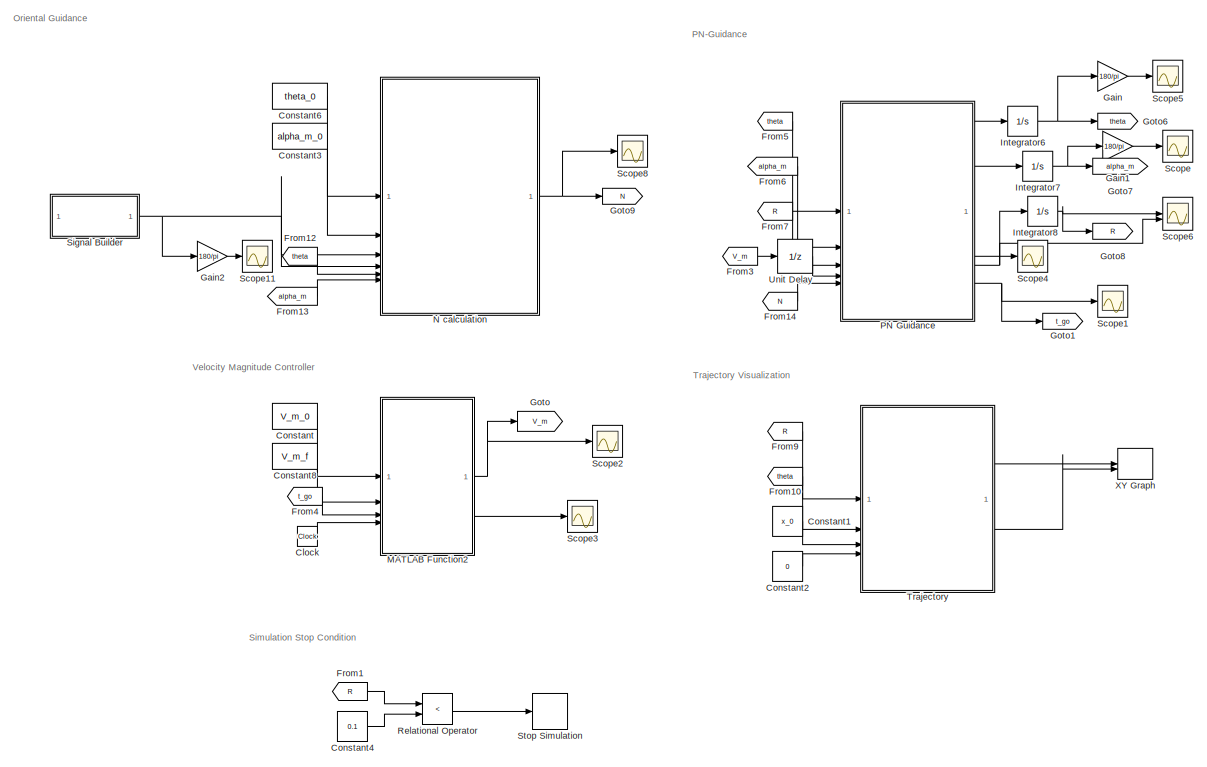
[diagram: root canvas - part 1/2, center side, full height]
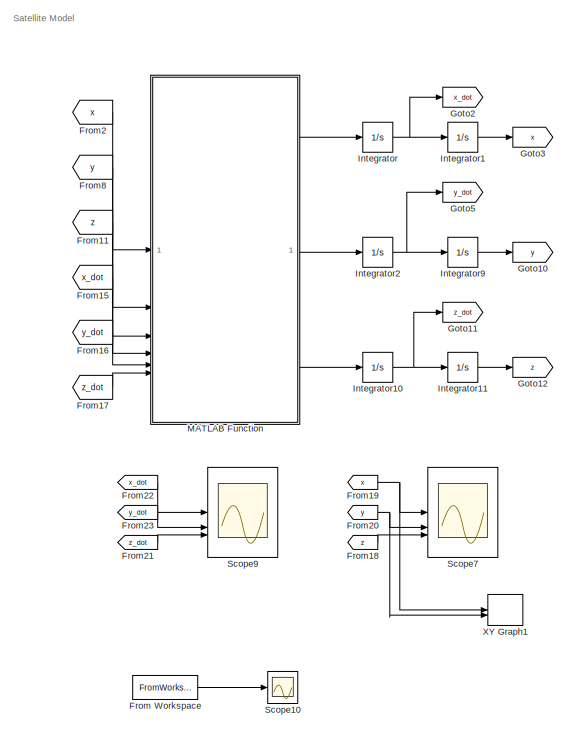
[diagram: root canvas - part 2/2, right side, full height]
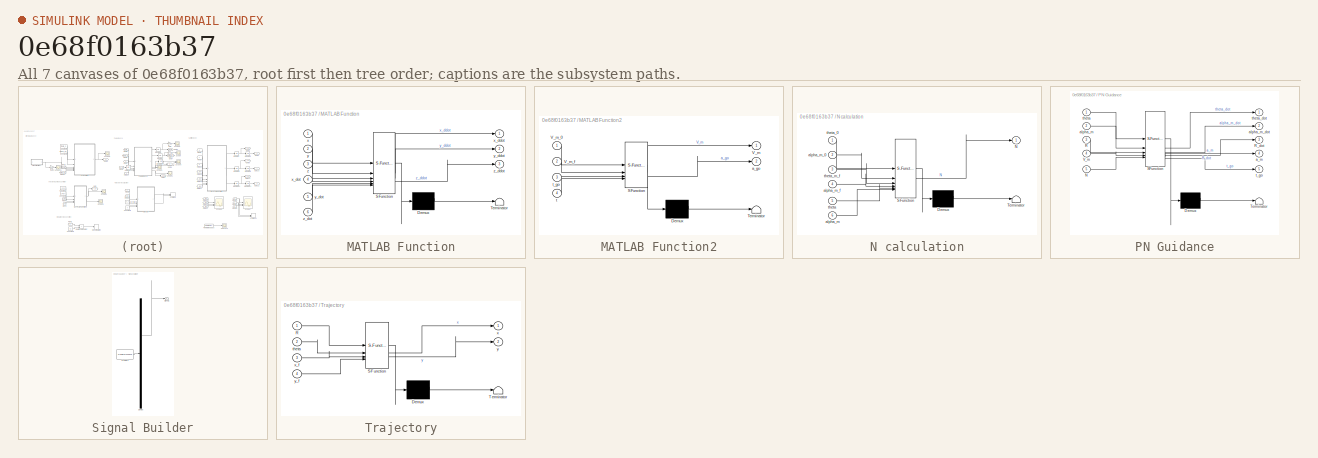
[diagram: thumbnail index - all 7 canvases of the model, root first then tree order]
MODEL slx_0e68f0163b37
KIND model
CONFIG AbsTol = auto
CONFIG EnableMultiTasking = off
CONFIG FixedStep = auto
CONFIG MaxStep = 0.01
CONFIG MinStep = auto
CONFIG RelTol = 1e-3
CONFIG SampleTimeConstraint = Unconstrained
CONFIG SolverName = ode45
CONFIG StartTime = 0.0
CONFIG StopTime = 50
BLOCK [Clock] Clock
  Decimation = 5
BLOCK [Constant] Constant
  Value = V_m_0
BLOCK [Constant] Constant1
  Value = x_0
BLOCK [Constant] Constant2
  Value = 0
BLOCK [Constant] Constant3
  Value = alpha_m_0
BLOCK [Constant] Constant4
  Value = 0.1
BLOCK [Constant] Constant6
  Value = theta_0
BLOCK [Constant] Constant8
  Value = V_m_f
BLOCK [FromWorkspace] From Workspace
  Commented = on
  SampleTime = -1
  VariableName = [tout_ren, V_m]
BLOCK [From] From1
  GotoTag = R
BLOCK [From] From10
  GotoTag = theta
BLOCK [From] From11
  Commented = on
  GotoTag = z
BLOCK [From] From12
  GotoTag = theta
BLOCK [From] From13
  GotoTag = alpha_m
BLOCK [From] From14
  GotoTag = N
BLOCK [From] From15
  Commented = on
  GotoTag = x_dot
BLOCK [From] From16
  Commented = on
  GotoTag = y_dot
BLOCK [From] From17
  Commented = on
  GotoTag = z_dot
BLOCK [From] From18
  Commented = on
  GotoTag = z
BLOCK [From] From19
  Commented = on
  GotoTag = x
BLOCK [From] From2
  Commented = on
  GotoTag = x
BLOCK [From] From20
  Commented = on
  GotoTag = y
BLOCK [From] From21
  Commented = on
  GotoTag = z_dot
BLOCK [From] From22
  Commented = on
  GotoTag = x_dot
BLOCK [From] From23
  Commented = on
  GotoTag = y_dot
BLOCK [From] From3
  GotoTag = V_m
BLOCK [From] From4
  GotoTag = t_go
BLOCK [From] From5
  GotoTag = theta
BLOCK [From] From6
  GotoTag = alpha_m
BLOCK [From] From7
  GotoTag = R
BLOCK [From] From8
  Commented = on
  GotoTag = y
BLOCK [From] From9
  GotoTag = R
BLOCK [Gain] Gain
  Gain = 180/pi
BLOCK [Gain] Gain1
  Gain = 180/pi
BLOCK [Gain] Gain2
  Gain = 180/pi
BLOCK [Goto] Goto
  GotoTag = V_m
BLOCK [Goto] Goto1
  GotoTag = t_go
BLOCK [Goto] Goto10
  Commented = on
  GotoTag = y
BLOCK [Goto] Goto11
  Commented = on
  GotoTag = z_dot
BLOCK [Goto] Goto12
  Commented = on
  GotoTag = z
BLOCK [Goto] Goto2
  Commented = on
  GotoTag = x_dot
BLOCK [Goto] Goto3
  Commented = on
  GotoTag = x
BLOCK [Goto] Goto5
  Commented = on
  GotoTag = y_dot
BLOCK [Goto] Goto6
  GotoTag = theta
BLOCK [Goto] Goto7
  GotoTag = alpha_m
BLOCK [Goto] Goto8
  GotoTag = R
BLOCK [Goto] Goto9
  GotoTag = N
BLOCK [Integrator] Integrator
  Commented = on
  InitialCondition = 0.0318
BLOCK [Integrator] Integrator1
  Commented = on
  InitialCondition = 40
BLOCK [Integrator] Integrator10
  Commented = on
  InitialCondition = 0.0212
BLOCK [Integrator] Integrator11
  Commented = on
  InitialCondition = -15
BLOCK [Integrator] Integrator2
  Commented = on
  InitialCondition = 0.0367
BLOCK [Integrator] Integrator6
  InitialCondition = theta_0
BLOCK [Integrator] Integrator7
  InitialCondition = alpha_m_0
BLOCK [Integrator] Integrator8
  InitialCondition = R_0
BLOCK [Integrator] Integrator9
  Commented = on
  InitialCondition = -26
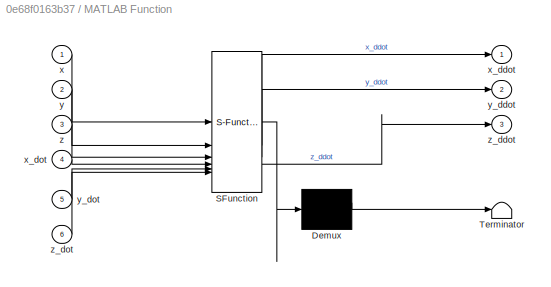
BLOCK [SubSystem] MATLAB Function
  Commented = on
  ErrorFcn = Stateflow.Translate.translate
  LibrarySourceBlock = simulink/User-Defined\nFunctions/MATLAB Function
  PermitHierarchicalResolution = ExplicitOnly
  SFBlockType = MATLAB Function
  TreatAsAtomicUnit = on
BLOCK [Demux] MATLAB Function/ Demux 
  Outputs = 1
BLOCK [S-Function] MATLAB Function/ SFunction 
  EnableBusSupport = on
  FunctionName = sf_sfun
  PortCounts = [6 4]
  SFcnIsStateOwnerBlock = off
  SFunctionDeploymentMode = off
  Tag = Stateflow S-Function 2
BLOCK [Terminator] MATLAB Function/ Terminator 
BLOCK [Inport] MATLAB Function/x
BLOCK [Outport] MATLAB Function/x_ddot
BLOCK [Inport] MATLAB Function/x_dot
  Port = 4
BLOCK [Inport] MATLAB Function/y
  Port = 2
BLOCK [Outport] MATLAB Function/y_ddot
  Port = 2
BLOCK [Inport] MATLAB Function/y_dot
  Port = 5
BLOCK [Inport] MATLAB Function/z
  Port = 3
BLOCK [Outport] MATLAB Function/z_ddot
  Port = 3
BLOCK [Inport] MATLAB Function/z_dot
  Port = 6
BLOCK [SubSystem] MATLAB Function2
  ErrorFcn = Stateflow.Translate.translate
  LibrarySourceBlock = simulink/User-Defined\nFunctions/MATLAB Function
  PermitHierarchicalResolution = ExplicitOnly
  SFBlockType = MATLAB Function
  TreatAsAtomicUnit = on
BLOCK [Demux] MATLAB Function2/ Demux 
  Outputs = 1
BLOCK [S-Function] MATLAB Function2/ SFunction 
  EnableBusSupport = on
  FunctionName = sf_sfun
  PortCounts = [4 3]
  SFcnIsStateOwnerBlock = off
  SFunctionDeploymentMode = off
  Tag = Stateflow S-Function 6
BLOCK [Terminator] MATLAB Function2/ Terminator 
BLOCK [Outport] MATLAB Function2/V_m
BLOCK [Inport] MATLAB Function2/V_m_0
BLOCK [Inport] MATLAB Function2/V_m_f
  Port = 2
BLOCK [Outport] MATLAB Function2/a_go
  Port = 2
BLOCK [Inport] MATLAB Function2/t
  Port = 4
BLOCK [Inport] MATLAB Function2/t_go
  Port = 3
BLOCK [SubSystem] N calculation
  ErrorFcn = Stateflow.Translate.translate
  LibrarySourceBlock = simulink/User-Defined\nFunctions/MATLAB Function
  PermitHierarchicalResolution = ExplicitOnly
  SFBlockType = MATLAB Function
  TreatAsAtomicUnit = on
BLOCK [Demux] N calculation/ Demux 
  Outputs = 1
BLOCK [S-Function] N calculation/ SFunction 
  EnableBusSupport = on
  FunctionName = sf_sfun
  PortCounts = [6 2]
  SFcnIsStateOwnerBlock = off
  SFunctionDeploymentMode = off
  Tag = Stateflow S-Function 5
BLOCK [Terminator] N calculation/ Terminator 
BLOCK [Outport] N calculation/N
BLOCK [Inport] N calculation/alpha_m
  Port = 6
BLOCK [Inport] N calculation/alpha_m_0
  Port = 2
BLOCK [Inport] N calculation/alpha_m_f
  Port = 4
BLOCK [Inport] N calculation/theta
  Port = 5
BLOCK [Inport] N calculation/theta_0
BLOCK [Inport] N calculation/theta_m_f
  Port = 3
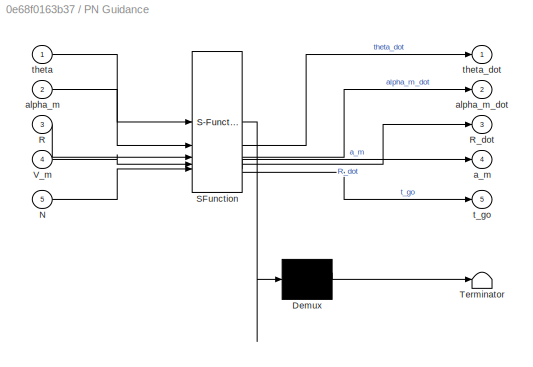
BLOCK [SubSystem] PN Guidance
  ErrorFcn = Stateflow.Translate.translate
  LibrarySourceBlock = simulink/User-Defined\nFunctions/MATLAB Function
  PermitHierarchicalResolution = ExplicitOnly
  SFBlockType = MATLAB Function
  TreatAsAtomicUnit = on
BLOCK [Demux] PN Guidance/ Demux 
  Outputs = 1
BLOCK [S-Function] PN Guidance/ SFunction 
  EnableBusSupport = on
  FunctionName = sf_sfun
  PortCounts = [5 6]
  SFcnIsStateOwnerBlock = off
  SFunctionDeploymentMode = off
  Tag = Stateflow S-Function 3
BLOCK [Terminator] PN Guidance/ Terminator 
BLOCK [Inport] PN Guidance/N
  Port = 5
BLOCK [Inport] PN Guidance/R
  Port = 3
BLOCK [Outport] PN Guidance/R_dot
  Port = 3
BLOCK [Inport] PN Guidance/V_m
  Port = 4
BLOCK [Outport] PN Guidance/a_m
  Port = 4
BLOCK [Inport] PN Guidance/alpha_m
  Port = 2
BLOCK [Outport] PN Guidance/alpha_m_dot
  Port = 2
BLOCK [Outport] PN Guidance/t_go
  Port = 5
BLOCK [Inport] PN Guidance/theta
BLOCK [Outport] PN Guidance/theta_dot
BLOCK [RelationalOperator] Relational Operator
  InputSameDT = off
  Operator = <
  OutDataTypeStr = boolean
  RndMeth = Simplest
BLOCK [Scope] Scope
  Floating = off
  NumInputPorts = 1
  ScopeSpecificationString = Simulink.scopes.TimeScopeBlockCfg('CurrentConfiguration', extmgr.ConfigurationSet(extmgr.Configuration('Core','General UI',true),extmgr.Configuration('Core','Source UI',true),extmgr.Configuration('Sources','WiredSimulink',true,'DataLoggingSaveFormat','Array','DataLoggingLimitDataPoints',true,'DataLoggingDecimation','1'),extmgr.Configuration('Visuals','Time Domain',true,'SerializedDisplays',{struct...<+1945ch>
BLOCK [Scope] Scope1
  Floating = off
  NumInputPorts = 1
  ScopeSpecificationString = Simulink.scopes.TimeScopeBlockCfg('CurrentConfiguration', extmgr.ConfigurationSet(extmgr.Configuration('Core','General UI',true),extmgr.Configuration('Core','Source UI',true),extmgr.Configuration('Sources','WiredSimulink',true,'DataLoggingVariableName','ScopeData1','DataLoggingSaveFormat','Array','DataLoggingLimitDataPoints',true,'DataLoggingDecimation','1'),extmgr.Configuration('Visuals','Time Do...<+2031ch>
BLOCK [Scope] Scope10
  Commented = on
  Floating = off
  NumInputPorts = 1
  ScopeSpecificationString = Simulink.scopes.TimeScopeBlockCfg('CurrentConfiguration', extmgr.ConfigurationSet(extmgr.Configuration('Core','General UI',true),extmgr.Configuration('Core','Source UI',true),extmgr.Configuration('Sources','WiredSimulink',true,'DataLoggingVariableName','ScopeData3','DataLoggingSaveFormat','Array','DataLoggingLimitDataPoints',true,'DataLoggingDecimation','1'),extmgr.Configuration('Visuals','Time Do...<+1993ch>
BLOCK [Scope] Scope11
  Floating = off
  NumInputPorts = 1
  ScopeSpecificationString = Simulink.scopes.TimeScopeBlockCfg('CurrentConfiguration', extmgr.ConfigurationSet(extmgr.Configuration('Core','General UI',true),extmgr.Configuration('Core','Source UI',true),extmgr.Configuration('Sources','WiredSimulink',true,'DataLoggingVariableName','ScopeData4','DataLoggingSaveFormat','Array','DataLoggingLimitDataPoints',true,'DataLoggingDecimation','1'),extmgr.Configuration('Visuals','Time Do...<+2049ch>
BLOCK [Scope] Scope2
  Floating = off
  NumInputPorts = 1
  ScopeSpecificationString = Simulink.scopes.TimeScopeBlockCfg('CurrentConfiguration', extmgr.ConfigurationSet(extmgr.Configuration('Core','General UI',true),extmgr.Configuration('Core','Source UI',true),extmgr.Configuration('Sources','WiredSimulink',true,'DataLoggingVariableName','ScopeData2','DataLoggingSaveFormat','Array','DataLoggingLimitDataPoints',true,'DataLoggingDecimation','1'),extmgr.Configuration('Visuals','Time Do...<+2032ch>
BLOCK [Scope] Scope3
  Floating = off
  NumInputPorts = 1
  ScopeSpecificationString = Simulink.scopes.TimeScopeBlockCfg('CurrentConfiguration', extmgr.ConfigurationSet(extmgr.Configuration('Core','General UI',true),extmgr.Configuration('Core','Source UI',true),extmgr.Configuration('Sources','WiredSimulink',true,'DataLoggingVariableName','ScopeData6','DataLoggingSaveFormat','Array','DataLoggingLimitDataPoints',true,'DataLoggingDecimation','1'),extmgr.Configuration('Visuals','Time Do...<+1973ch>
BLOCK [Scope] Scope4
  Floating = off
  NumInputPorts = 1
  ScopeSpecificationString = Simulink.scopes.TimeScopeBlockCfg('CurrentConfiguration', extmgr.ConfigurationSet(extmgr.Configuration('Core','General UI',true),extmgr.Configuration('Core','Source UI',true),extmgr.Configuration('Sources','WiredSimulink',true,'DataLoggingVariableName','ScopeData3','DataLoggingSaveFormat','Array','DataLoggingLimitDataPoints',true,'DataLoggingDecimation','1'),extmgr.Configuration('Visuals','Time Do...<+2024ch>
BLOCK [Scope] Scope5
  Floating = off
  NumInputPorts = 1
  ScopeSpecificationString = Simulink.scopes.TimeScopeBlockCfg('CurrentConfiguration', extmgr.ConfigurationSet(extmgr.Configuration('Core','General UI',true),extmgr.Configuration('Core','Source UI',true),extmgr.Configuration('Sources','WiredSimulink',true,'DataLoggingVariableName','ScopeData4','DataLoggingSaveFormat','Array','DataLoggingLimitDataPoints',true,'DataLoggingDecimation','1'),extmgr.Configuration('Visuals','Time Do...<+2030ch>
BLOCK [Scope] Scope6
  Floating = off
  NumInputPorts = 2
  ScopeSpecificationString = Simulink.scopes.TimeScopeBlockCfg('CurrentConfiguration', extmgr.ConfigurationSet(extmgr.Configuration('Core','General UI',true),extmgr.Configuration('Core','Source UI',true),extmgr.Configuration('Sources','WiredSimulink',true,'DataLoggingVariableName','ScopeData5','DataLoggingSaveFormat','Array','DataLoggingLimitDataPoints',true,'DataLoggingDecimation','1'),extmgr.Configuration('Visuals','Time Do...<+2717ch>
BLOCK [Scope] Scope7
  Commented = on
  Floating = off
  NumInputPorts = 3
  ScopeSpecificationString = Simulink.scopes.TimeScopeBlockCfg('CurrentConfiguration', extmgr.ConfigurationSet(extmgr.Configuration('Core','General UI',true),extmgr.Configuration('Core','Source UI',true),extmgr.Configuration('Sources','WiredSimulink',true,'DataLoggingVariableName','ScopeData1','DataLoggingSaveFormat','Array','DataLoggingLimitDataPoints',true,'DataLoggingDecimation','1'),extmgr.Configuration('Visuals','Time Do...<+1729ch>
BLOCK [Scope] Scope8
  Floating = off
  NumInputPorts = 1
  ScopeSpecificationString = Simulink.scopes.TimeScopeBlockCfg('CurrentConfiguration', extmgr.ConfigurationSet(extmgr.Configuration('Core','General UI',true),extmgr.Configuration('Core','Source UI',true),extmgr.Configuration('Sources','WiredSimulink',true,'DataLoggingVariableName','ScopeData7','DataLoggingSaveFormat','Array','DataLoggingLimitDataPoints',true,'DataLoggingDecimation','1'),extmgr.Configuration('Visuals','Time Do...<+1973ch>
BLOCK [Scope] Scope9
  Commented = on
  Floating = off
  NumInputPorts = 3
  ScopeSpecificationString = Simulink.scopes.TimeScopeBlockCfg('CurrentConfiguration', extmgr.ConfigurationSet(extmgr.Configuration('Core','General UI',true),extmgr.Configuration('Core','Source UI',true),extmgr.Configuration('Sources','WiredSimulink',true,'DataLoggingVariableName','ScopeData2','DataLoggingSaveFormat','Array','DataLoggingLimitDataPoints',true,'DataLoggingDecimation','1'),extmgr.Configuration('Visuals','Time Do...<+1681ch>
BLOCK [SubSystem] Signal Builder
  ClipboardFcn = sigbuilder_block('clipboard');
  CloseFcn = sigbuilder_block('close');
  ContinueFcn = sigbuilder_block('continue');
  CopyFcn = sigbuilder_block('copy');
  DeleteFcn = sigbuilder_block('delete');
  LoadFcn = sigbuilder_block('load');
  MaskHideContents = on
  ModelCloseFcn = sigbuilder_block('modelClose');
  NameChangeFcn = sigbuilder_block('namechange');
  OpenFcn = sigbuilder_block('open',[5.4 36 1141.2 516.6 ]);
  PauseFcn = sigbuilder_block('pause');
  PreSaveFcn = sigbuilder_block('preSave');
  StartFcn = sigbuilder_block('start');
  StopFcn = sigbuilder_block('stop');
  Tag = STV Subsys
BLOCK [Demux] Signal Builder/Demux
  DisplayOption = none
  Outputs = 1
  Tag = STV Demux
BLOCK [FromWorkspace] Signal Builder/FromWs
  Tag = STV FromWs
  VariableName = tuvar
BLOCK [Outport] Signal Builder/Signal 1
  Tag = STV Outport
BLOCK [Stop] Stop Simulation
BLOCK [SubSystem] Trajectory
  ErrorFcn = Stateflow.Translate.translate
  LibrarySourceBlock = simulink/User-Defined\nFunctions/MATLAB Function
  PermitHierarchicalResolution = ExplicitOnly
  SFBlockType = MATLAB Function
  TreatAsAtomicUnit = on
BLOCK [Demux] Trajectory/ Demux 
  Outputs = 1
BLOCK [S-Function] Trajectory/ SFunction 
  EnableBusSupport = on
  FunctionName = sf_sfun
  PortCounts = [4 3]
  SFcnIsStateOwnerBlock = off
  SFunctionDeploymentMode = off
  Tag = Stateflow S-Function 4
BLOCK [Terminator] Trajectory/ Terminator 
BLOCK [Inport] Trajectory/R
BLOCK [Inport] Trajectory/theta
  Port = 2
BLOCK [Outport] Trajectory/x
BLOCK [Inport] Trajectory/x_f
  Port = 3
BLOCK [Outport] Trajectory/y
  Port = 2
BLOCK [Inport] Trajectory/y_f
  Port = 4
BLOCK [UnitDelay] Unit Delay
  HasFrameUpgradeWarning = on
  SampleTime = -1
BLOCK [Record] XY Graph
  CompatibilityTag = XY
  FileSettingsInternal = {"entries":[{"content":{"excelSettings":{"content":{},"type":"Streamout.ExcelSettings"}},"type":"Streamout.FileSettingStorage","uuid":"551156a9-011b-4db6-ab14-1de51325d911"}],"packageUris":["http://schema.mathworks.com/mf0/streamout_blocks/R2020a"],"version":"1.0"}
  Layout = [1 1]
  SignalsInternal = {"entries":[{"content":{"signals":[{"content":{"blockPath":["Docking_algo/XY Graph"],"channel":[],"dimensions":[1],"domain":"Docking_algo/XY Graph","lineColor":"#77ac30","plots":[1],"port":1,"sid":[""],"signalID":606,"signalName":"Trajectory:1"},"type":"RecordBlkView.Signal","uuid":"7af596ec-d0e9-43b3-adcd-344660104792"},{"content":{"blockPath":["Docking_algo/XY Graph"],"channel":[],"dimensions":[...<+387ch>
  VisualizationBindings = {"xyplotplugin":{"info":[{"series":[{"bindingParametersList":[{"parameter":"Y-Axis","signalID":610,"signalName":"Trajectory:2"},{"parameter":"X-Axis","signalID":606,"signalName":"Trajectory:1"}],"seriesID":25172}],"subplotID":1}]}}
BLOCK [Record] XY Graph1
  Commented = on
  CompatibilityTag = XY
  FileSettingsInternal = {"entries":[{"content":{"excelSettings":{"content":{},"type":"Streamout.ExcelSettings"}},"type":"Streamout.FileSettingStorage","uuid":"3ea3dc85-5c01-4835-a46d-dad012254255"}],"packageUris":["http://schema.mathworks.com/mf0/streamout_blocks/R2020a"],"version":"1.0"}
  Layout = [1 1]
  SignalsInternal = {"entries":[{"content":{"signals":[]},"type":"RecordBlkView.InputSignals","uuid":"271cc1a1-dd93-4392-b2c2-60fcf54009ab"}],"packageUris":["http://schema.mathworks.com/mf0/streamout_blocks/R2020a"],"version":"1.0"}
  VisualizationBindings = {"xyplotplugin":{"info":[{"series":[],"subplotID":1}]}}
ANNOTATION (root): Oriental Guidance
ANNOTATION (root): PN-Guidance
ANNOTATION (root): Satellite Model
ANNOTATION (root): Simulation Stop Condition
ANNOTATION (root): Trajectory Visualization
ANNOTATION (root): Velocity Magnitude Controller
LINE Clock:1 -> MATLAB Function2:4
LINE Constant1:1 -> Trajectory:3
LINE Constant2:1 -> Trajectory:4
LINE Constant3:1 -> N calculation:2
LINE Constant4:1 -> Relational Operator:2
LINE Constant6:1 -> N calculation:1
LINE Constant8:1 -> MATLAB Function2:2
LINE Constant:1 -> MATLAB Function2:1
LINE From Workspace:1 -> Scope10:1
LINE From10:1 -> Trajectory:2
LINE From11:1 -> MATLAB Function:3
LINE From12:1 -> N calculation:5
LINE From13:1 -> N calculation:6
LINE From14:1 -> PN Guidance:5
LINE From15:1 -> MATLAB Function:4
LINE From16:1 -> MATLAB Function:5
LINE From17:1 -> MATLAB Function:6
LINE From18:1 -> Scope7:3
NET From19:1 -> Scope7:1, XY Graph1:1
LINE From1:1 -> Relational Operator:1
NET From20:1 -> Scope7:2, XY Graph1:2
LINE From21:1 -> Scope9:3
LINE From22:1 -> Scope9:1
LINE From23:1 -> Scope9:2
LINE From2:1 -> MATLAB Function:1
LINE From3:1 -> Unit Delay:1
LINE From4:1 -> MATLAB Function2:3
LINE From5:1 -> PN Guidance:1
LINE From6:1 -> PN Guidance:2
LINE From7:1 -> PN Guidance:3
LINE From8:1 -> MATLAB Function:2
LINE From9:1 -> Trajectory:1
LINE Gain1:1 -> Scope:1
LINE Gain2:1 -> Scope11:1
LINE Gain:1 -> Scope5:1
NET Integrator10:1 -> Goto11:1, Integrator11:1
LINE Integrator11:1 -> Goto12:1
LINE Integrator1:1 -> Goto3:1
NET Integrator2:1 -> Goto5:1, Integrator9:1
NET Integrator6:1 -> Gain:1, Goto6:1
NET Integrator7:1 -> Gain1:1, Goto7:1
NET Integrator8:1 -> Goto8:1, Scope6:1
LINE Integrator9:1 -> Goto10:1
NET Integrator:1 -> Goto2:1, Integrator1:1
NET MATLAB Function2:1 -> Goto:1, Scope2:1
LINE MATLAB Function2:2 -> Scope3:1
LINE MATLAB Function:1 -> Integrator:1
LINE MATLAB Function:2 -> Integrator2:1
LINE MATLAB Function:3 -> Integrator10:1
NET N calculation:1 -> Goto9:1, Scope8:1
LINE PN Guidance:1 -> Integrator6:1
LINE PN Guidance:2 -> Integrator7:1
NET PN Guidance:3 -> Integrator8:1, Scope6:2
LINE PN Guidance:4 -> Scope4:1
NET PN Guidance:5 -> Goto1:1, Scope1:1
LINE Relational Operator:1 -> Stop Simulation:1
NET Signal Builder:1 -> Gain2:1, N calculation:3, N calculation:4
LINE Trajectory:1 -> XY Graph:1
LINE Trajectory:2 -> XY Graph:2
LINE Unit Delay:1 -> PN Guidance:4
note: NET lines group one-source signal fan-out (src -> all destinations, sorted); 1:1 wires keep LINE
CHART MATLAB Function states=1 transitions=1
  STATE_LABEL 'eML_blk_kernel()'
  STATE_LABEL 'SCRIPT:\nfunction [x_ddot, y_ddot, z_ddot] = fcn(x, y, z, x_dot, y_dot, z_dot)\n\nmyu = 398332400000000;\na = 7178*10^3;\n\nomg = sqrt(myu/a^3);\n\n%{\nx_ddot = 2*omg*y_dot + 3*omg*omg*x;\ny_ddot = -2*omg*x;\nz_ddot = - omg*omg*z;\n%}\n\nstate = [x;y;z; x_dot; y_dot; z_dot];\nA = [0 0 0 1 0 0;0 0 0 0 1 0; 0 0 0 0 0 1; 3*omg*omg 0 0 0 2*omg 0; 0 0 0 -2*omg 0 0; 0 0 -omg*omg 0 0 0];\nB = [0 0 0; 0 0 0; 0 0 0; 1 0 0...<+272ch>'
CHART PN Guidance states=1 transitions=1
  STATE_LABEL 'eML_blk_kernel()'
  STATE_LABEL 'SCRIPT:\nfunction [theta_dot, alpha_m_dot, R_dot, a_m, t_go] = fcn(theta, alpha_m, R, V_m, N)\ng = 9.872;\n\n\n%% PN Guidance\ntheta_dot = -(V_m/R)*sin(alpha_m - theta);\nR_dot = -V_m*cos(alpha_m - theta);\nalpha_m_dot = N*theta_dot;\n\n%% Without gravity compensation\na_m = N*V_m*theta_dot;\n\n%% With gravity compensation\n%a_m = N*V_m*theta_dot + g*cos(alpha_m);\n\n%% Time to go\nt_go = abs(R/R_dot);'
CHART Trajectory states=1 transitions=1
  STATE_LABEL 'eML_blk_kernel()'
  STATE_LABEL 'SCRIPT:\nfunction [x,y] = fcn(R, theta, x_f, y_f)\nx = x_f - R*cos(theta);\ny = y_f - R*sin(theta);\n\n'
CHART N calculation states=1 transitions=1
  STATE_LABEL 'eML_blk_kernel()'
  STATE_LABEL 'SCRIPT:\nfunction N = fcn(theta_0, alpha_m_0, theta_m_f, alpha_m_f, theta, alpha_m)\n\nif (alpha_m_f - alpha_m_0)/(theta_m_f - theta_0) >= 2\n    N = (alpha_m_f - alpha_m_0)/(theta_m_f - theta_0);\n\nelse\n    if (alpha_m_f - alpha_m)/(theta_m_f - theta) < 2\n        N = (2/pi)*alpha_m_0;\n    else\n        N = 2;\n    end\nend\n'
CHART MATLAB Function2 states=1 transitions=1
  STATE_LABEL 'eML_blk_kernel()'
  STATE_LABEL 'SCRIPT:\nfunction [V_m, a_go] = fcn(V_m_0, V_m_f, t_go, t)\na_go = 0;\nV_m = 0;\n\npersistent t_prev \npersistent V_m_prev\n\nif isempty(t_prev)\n    t_prev = 0;\nend\nif isempty(V_m_prev)\n    V_m_prev = V_m_0;\nend\n\nt_err = t - t_prev;\n\na_go = (V_m_f - V_m_prev)/t_go;\nV_m = V_m_prev + a_go*t_err;\n\nV_m_prev = V_m;\nt_prev = t;'
CHART  states=0 transitions=0
CHART  states=0 transitions=0
CHART  states=0 transitions=0
CHART  states=0 transitions=0
CHART  states=0 transitions=0
